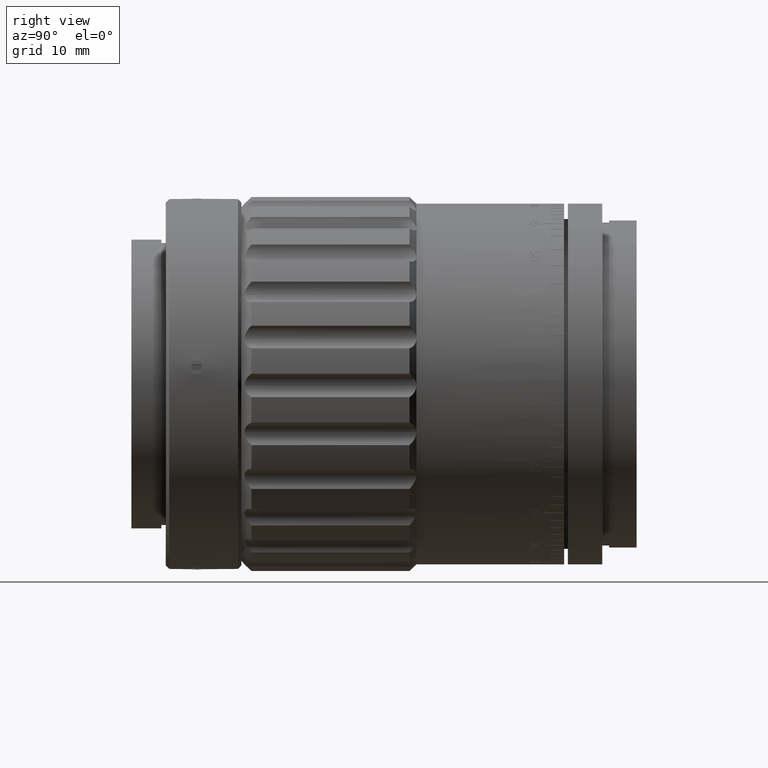
[diagram: clean part render]
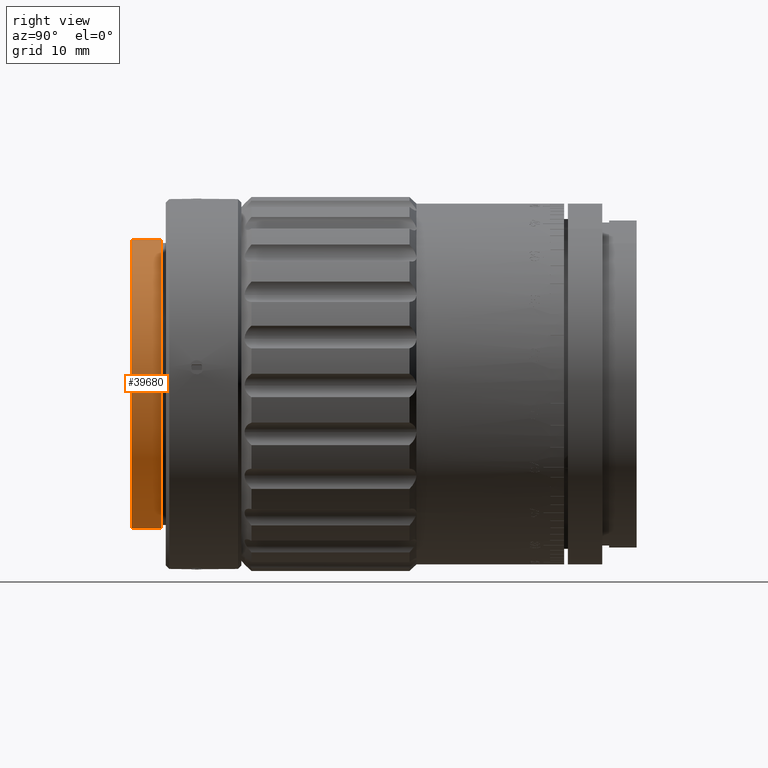
[diagram: same view with one face highlighted and labeled with its STEP entity id]
A machine part, right view. The second image highlights one B-rep face of the part: STEP entity #39680.
In plain terms, the highlighted cylindrical surface (partial cylindrical patch) has radius 21.1 mm, axis along (-0, 1, -0).
Its self-contained STEP definition (entity closure, byte-faithful):
#191 = CYLINDRICAL_SURFACE ( 'NONE', #16813, 21.10000000000000900 ) ;
#3657 = CARTESIAN_POINT ( 'NONE',  ( 0.0000000000000000000, 35.23590944691601100, 0.0000000000000000000 ) ) ;
#7321 = AXIS2_PLACEMENT_3D ( 'NONE', #18799, #45013, #78265 ) ;
#8826 = VERTEX_POINT ( 'NONE', #27054 ) ;
#8834 = LINE ( 'NONE', #46304, #18233 ) ;
#14632 = LINE ( 'NONE', #49215, #59442 ) ;
#16813 = AXIS2_PLACEMENT_3D ( 'NONE', #3657, #17671, #37731 ) ;
#17671 = DIRECTION ( 'NONE',  ( -0.0000000000000000000, 1.000000000000000000, -0.0000000000000000000 ) ) ;
#18233 = VECTOR ( 'NONE', #26509, 1000.000000000000000 ) ;
#18799 = CARTESIAN_POINT ( 'NONE',  ( 0.0000000000000000000, -10.43820173583021000, 0.0000000000000000000 ) ) ;
#19493 = CIRCLE ( 'NONE', #21897, 21.10000000000000900 ) ;
#21897 = AXIS2_PLACEMENT_3D ( 'NONE', #69474, #55703, #22240 ) ;
#22240 = DIRECTION ( 'NONE',  ( 0.0000000000000000000, 0.0000000000000000000, 1.000000000000000000 ) ) ;
#26103 = EDGE_CURVE ( 'NONE', #8826, #62939, #14632, .T. ) ;
#26509 = DIRECTION ( 'NONE',  ( -0.0000000000000000000, 1.000000000000000000, -0.0000000000000000000 ) ) ;
#27054 = CARTESIAN_POINT ( 'NONE',  ( 2.584004746200916200E-015, -14.79999999999999400, -21.10000000000000900 ) ) ;
#33687 = CARTESIAN_POINT ( 'NONE',  ( 2.584004746200916200E-015, -10.43820173583021000, -21.10000000000000900 ) ) ;
#35856 = EDGE_CURVE ( 'NONE', #68138, #38826, #8834, .T. ) ;
#37731 = DIRECTION ( 'NONE',  ( 0.0000000000000000000, 0.0000000000000000000, 1.000000000000000000 ) ) ;
#38826 = VERTEX_POINT ( 'NONE', #71461 ) ;
#39680 = ADVANCED_FACE ( 'NONE', ( #59758 ), #191, .T. ) ;
#40903 = EDGE_LOOP ( 'NONE', ( #79770, #57422, #85365, #72406 ) ) ;
#45013 = DIRECTION ( 'NONE',  ( -0.0000000000000000000, 1.000000000000000000, -0.0000000000000000000 ) ) ;
#45436 = CARTESIAN_POINT ( 'NONE',  ( 0.0000000000000000000, -14.79999999999999400, 21.10000000000000900 ) ) ;
#46304 = CARTESIAN_POINT ( 'NONE',  ( 0.0000000000000000000, 35.23590944691601100, 21.10000000000000900 ) ) ;
#49215 = CARTESIAN_POINT ( 'NONE',  ( 2.584004746200916200E-015, 35.23590944691601100, -21.10000000000000900 ) ) ;
#55703 = DIRECTION ( 'NONE',  ( -0.0000000000000000000, 1.000000000000000000, -0.0000000000000000000 ) ) ;
#57422 = ORIENTED_EDGE ( 'NONE', *, *, #26103, .T. ) ;
#59442 = VECTOR ( 'NONE', #75194, 1000.000000000000000 ) ;
#59758 = FACE_OUTER_BOUND ( 'NONE', #40903, .T. ) ;
#62939 = VERTEX_POINT ( 'NONE', #33687 ) ;
#68138 = VERTEX_POINT ( 'NONE', #45436 ) ;
#69474 = CARTESIAN_POINT ( 'NONE',  ( 0.0000000000000000000, -14.79999999999999400, 0.0000000000000000000 ) ) ;
#71461 = CARTESIAN_POINT ( 'NONE',  ( 0.0000000000000000000, -10.43820173583021000, 21.10000000000000900 ) ) ;
#71866 = CIRCLE ( 'NONE', #7321, 21.10000000000000900 ) ;
#72406 = ORIENTED_EDGE ( 'NONE', *, *, #35856, .F. ) ;
#75194 = DIRECTION ( 'NONE',  ( -0.0000000000000000000, 1.000000000000000000, -0.0000000000000000000 ) ) ;
#78265 = DIRECTION ( 'NONE',  ( 0.0000000000000000000, 0.0000000000000000000, 1.000000000000000000 ) ) ;
#79770 = ORIENTED_EDGE ( 'NONE', *, *, #84113, .T. ) ;
#81152 = EDGE_CURVE ( 'NONE', #38826, #62939, #71866, .T. ) ;
#84113 = EDGE_CURVE ( 'NONE', #68138, #8826, #19493, .T. ) ;
#85365 = ORIENTED_EDGE ( 'NONE', *, *, #81152, .F. ) ;